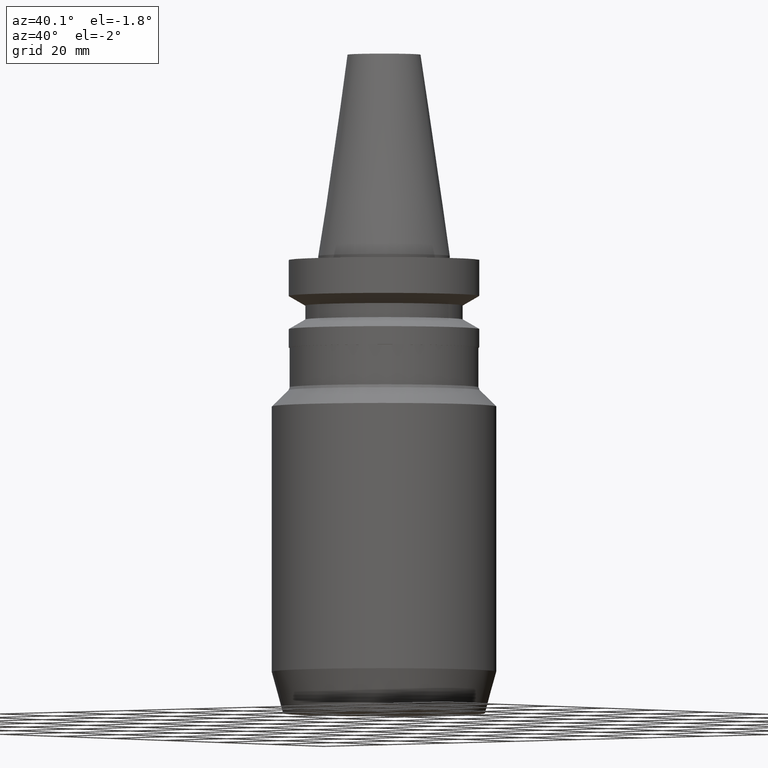
[diagram: clean part render]
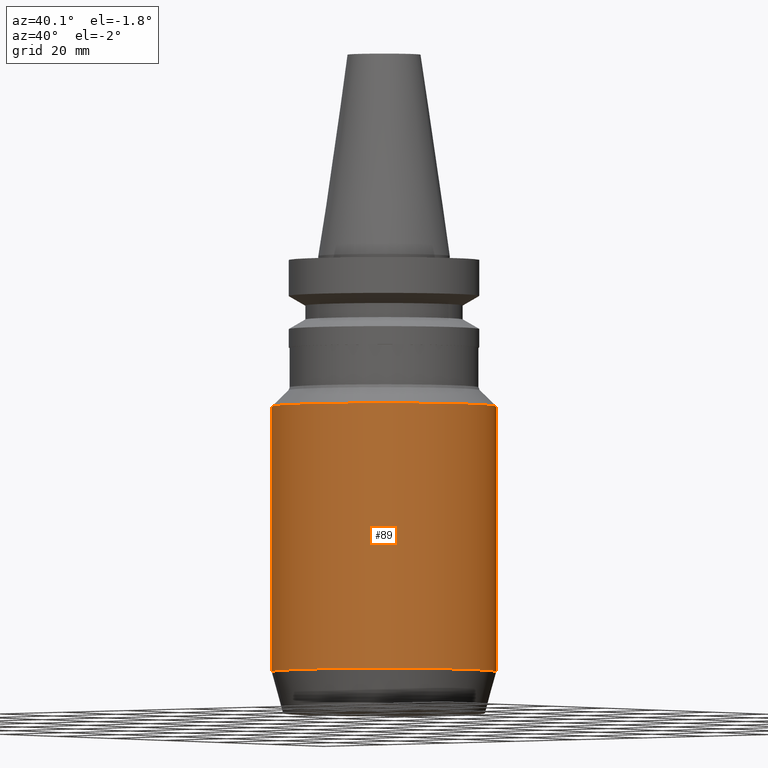
[diagram: same view with one face highlighted and labeled with its STEP entity id]
A machine part, auxiliary view. The second image highlights one B-rep face of the part: STEP entity #89.
In plain terms, the highlighted cylindrical surface (bore or boss wall) has radius 27 mm, axis along (-0, -0, 1).
Its self-contained STEP definition (entity closure, byte-faithful):
#89=ADVANCED_FACE('',(#132,#133),#134,.T.);
#132=FACE_BOUND('',#178,.T.);
#133=FACE_BOUND('',#179,.T.);
#134=CYLINDRICAL_SURFACE('',#180,27.0);
#178=EDGE_LOOP('',(#252));
#179=EDGE_LOOP('',(#253));
#180=AXIS2_PLACEMENT_3D('',#254,#255,#256);
#252=ORIENTED_EDGE('',*,*,#276,.F.);
#253=ORIENTED_EDGE('',*,*,#275,.T.);
#254=CARTESIAN_POINT('',(4.16992235042869E-015,8.33984470085739E-015,-68.09999998909));
#255=DIRECTION('',(-6.12323399573677E-017,-1.22464679914735E-016,1.0));
#256=DIRECTION('',(-1.23259516440783E-032,1.0,1.22464679914735E-016));
#275=EDGE_CURVE('',#303,#303,#304,.T.);
#276=EDGE_CURVE('',#305,#305,#306,.T.);
#303=VERTEX_POINT('',#333);
#304=CIRCLE('',#334,27.0);
#305=VERTEX_POINT('',#335);
#306=CIRCLE('',#336,27.0);
#333=CARTESIAN_POINT('',(2.21661070645671E-015,27.0,-36.2));
#334=AXIS2_PLACEMENT_3D('',#376,#377,#378);
#335=CARTESIAN_POINT('',(6.12323399440068E-015,27.0,-99.9999999781801));
#336=AXIS2_PLACEMENT_3D('',#379,#380,#381);
#376=CARTESIAN_POINT('',(2.21661070645671E-015,4.43322141291342E-015,-36.2));
#377=DIRECTION('',(6.12323399573677E-017,1.22464679914735E-016,-1.0));
#378=DIRECTION('',(-1.23259516440783E-032,1.0,1.22464679914735E-016));
#379=CARTESIAN_POINT('',(6.12323399440068E-015,1.22464679888014E-014,-99.9999999781801));
#380=DIRECTION('',(6.12323399573677E-017,1.22464679914735E-016,-1.0));
#381=DIRECTION('',(-1.23259516440783E-032,1.0,1.22464679914735E-016));